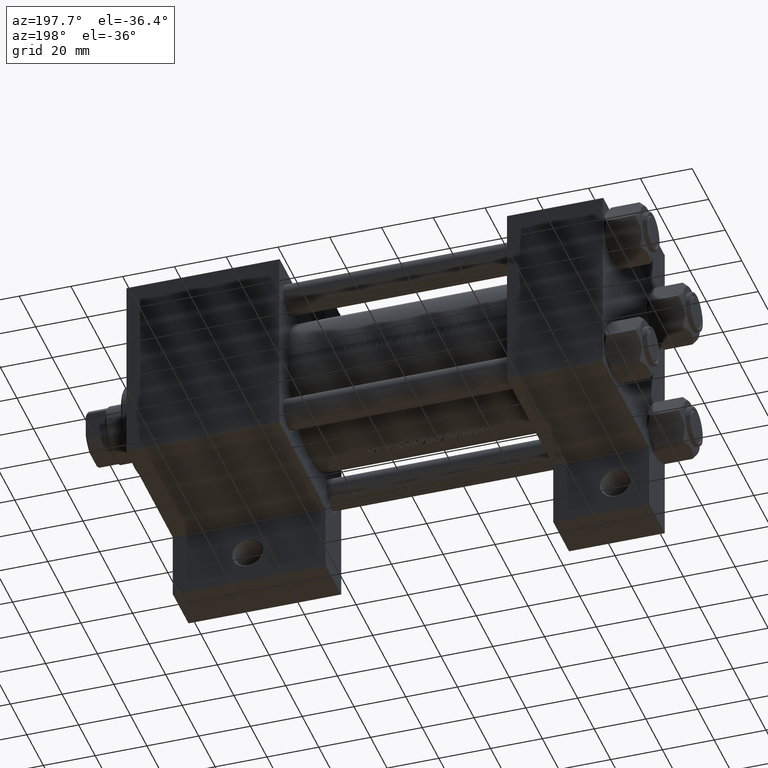
[diagram: clean part render]
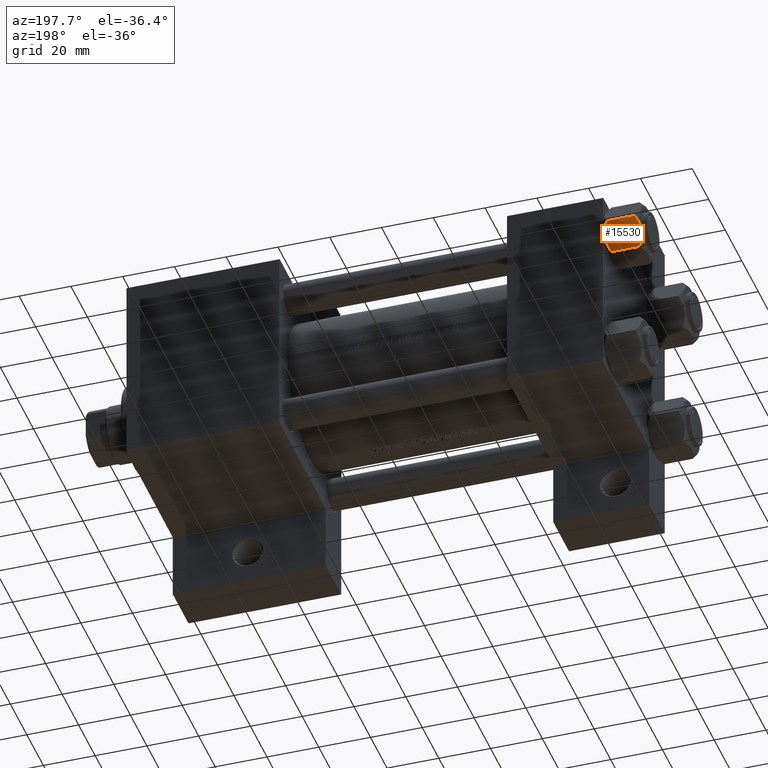
[diagram: same view with one face highlighted and labeled with its STEP entity id]
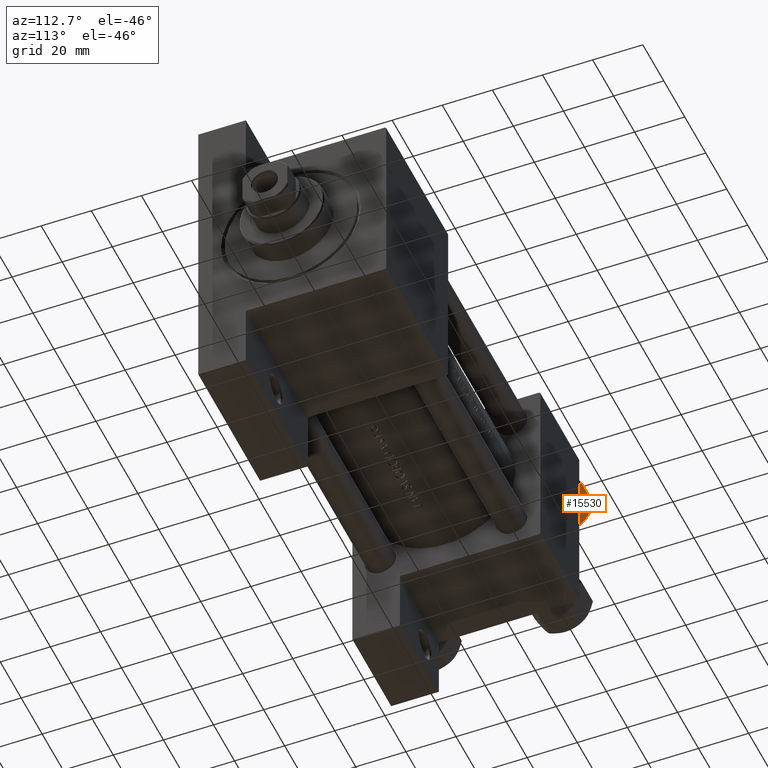
[diagram: same view with one face highlighted and labeled with its STEP entity id]
A machine part, auxiliary view. The second image highlights one B-rep face of the part: STEP entity #15530.
A second angle (auxiliary view) of the same face is appended — the face is thin or edge-on in the first view.
In plain terms, the highlighted planar face has unit normal (-0, -0.866, 0.5).
Its self-contained STEP definition (entity closure, byte-faithful):
#122 = VERTEX_POINT ( 'NONE', #31721 ) ;
#711 = CARTESIAN_POINT ( 'NONE',  ( 5.810000000000000497, 10.06321519197518022, -1.556784808024817890 ) ) ;
#2241 = CARTESIAN_POINT ( 'NONE',  ( 8.715000000000003411, 5.031607595987588333, -14.00000000000000000 ) ) ;
#2505 = VERTEX_POINT ( 'NONE', #38322 ) ;
#3764 = EDGE_CURVE ( 'NONE', #122, #4468, #6858, .T. ) ;
#4298 = CARTESIAN_POINT ( 'NONE',  ( 7.700834831386346835, 6.788193195293095172, -13.80960203119265728 ) ) ;
#4468 = VERTEX_POINT ( 'NONE', #26809 ) ;
#5261 = CARTESIAN_POINT ( 'NONE',  ( 8.460569896449619876, 5.472293462311864864, -14.00000000000000355 ) ) ;
#6382 = ORIENTED_EDGE ( 'NONE', *, *, #3764, .F. ) ;
#6532 = EDGE_CURVE ( 'NONE', #28700, #122, #27359, .T. ) ;
#6786 = CARTESIAN_POINT ( 'NONE',  ( 10.69662495661650503, 1.599332489581332339, -13.28854452935654962 ) ) ;
#6858 = B_SPLINE_CURVE_WITH_KNOTS ( 'NONE', 3,
 ( #2241, #24830, #46241, #6786, #24366, #32047 ),
 .UNSPECIFIED., .F., .F.,
 ( 4, 2, 4 ),
 ( 0.006022845781655591577, 0.009013049135303638493, 0.01200325248895168714 ),
 .UNSPECIFIED. ) ;
#7033 = CARTESIAN_POINT ( 'NONE',  ( 8.715000000000003411, 5.031607595987588333, 0.000000000000000000 ) ) ;
#7748 = CARTESIAN_POINT ( 'NONE',  ( 11.62000000000000099, -1.607967606633101042E-15, -1.556784808024815669 ) ) ;
#8383 = CARTESIAN_POINT ( 'NONE',  ( 6.265545725125283738, 9.274186850887380373, -12.89876091710046602 ) ) ;
#10362 = B_SPLINE_CURVE_WITH_KNOTS ( 'NONE', 3,
 ( #7748, #14966, #40692, #37093, #44058, #26044, #28683, #7033 ),
 .UNSPECIFIED., .F., .F.,
 ( 4, 2, 2, 4 ),
 ( 2.544312114904956385E-07, 0.003011550106433539924, 0.004517197944044563582, 0.006022845781655587240 ),
 .UNSPECIFIED. ) ;
#10726 = EDGE_CURVE ( 'NONE', #2505, #42103, #10362, .T. ) ;
#11763 = CARTESIAN_POINT ( 'NONE',  ( 6.265018354709775750, 9.275100283241453525, -1.101766453314955152 ) ) ;
#12244 = CARTESIAN_POINT ( 'NONE',  ( 7.713000053756308816, 6.767122412062953174, -0.1545239700039844066 ) ) ;
#12675 = CARTESIAN_POINT ( 'NONE',  ( 5.810000000000000497, 10.06321519197518022, -14.00000000000000000 ) ) ;
#13205 = ORIENTED_EDGE ( 'NONE', *, *, #28822, .T. ) ;
#14966 = CARTESIAN_POINT ( 'NONE',  ( 11.16445427487472131, 0.7890283410877951820, -1.101239082899533317 ) ) ;
#15530 = ADVANCED_FACE ( 'NONE', ( #46288 ), #23729, .F. ) ;
#18981 = CARTESIAN_POINT ( 'NONE',  ( 8.202333004087902779, 5.919572880271052995, -13.96005881939309212 ) ) ;
#19667 = CARTESIAN_POINT ( 'NONE',  ( 5.810000000000000497, 10.06321519197518022, -12.44321519197518278 ) ) ;
#19979 = LINE ( 'NONE', #31027, #24962 ) ;
#21132 = EDGE_LOOP ( 'NONE', ( #31468, #13205, #40626, #27697, #41608, #6382 ) ) ;
#22601 = CARTESIAN_POINT ( 'NONE',  ( 6.731401448974989599, 8.467301068182914392, -13.28585617404753272 ) ) ;
#23729 = PLANE ( 'NONE',  #26734 ) ;
#24366 = CARTESIAN_POINT ( 'NONE',  ( 11.16498164529022574, 0.7881149087337280257, -12.89823354668504862 ) ) ;
#24830 = CARTESIAN_POINT ( 'NONE',  ( 9.220295946303432189, 4.156409344131451356, -14.00000000000000178 ) ) ;
#24962 = VECTOR ( 'NONE', #30087, 1000.000000000000000 ) ;
#26044 = CARTESIAN_POINT ( 'NONE',  ( 9.227666995912102266, 4.143642311704122783, -0.03994118060690848154 ) ) ;
#26431 = CARTESIAN_POINT ( 'NONE',  ( 5.810000000000000497, 10.06321519197518022, -12.44321519197518278 ) ) ;
#26734 = AXIS2_PLACEMENT_3D ( 'NONE', #38837, #31167, #34993 ) ;
#26809 = CARTESIAN_POINT ( 'NONE',  ( 11.62000000000000099, -1.795242522838921761E-15, -12.44321519197518455 ) ) ;
#27273 = VECTOR ( 'NONE', #31435, 1000.000000000000000 ) ;
#27359 = B_SPLINE_CURVE_WITH_KNOTS ( 'NONE', 3,
 ( #26431, #8383, #22601, #34597, #4298, #18981, #5261, #30049 ),
 .UNSPECIFIED., .F., .F.,
 ( 4, 2, 2, 4 ),
 ( 2.544312114902182352E-07, 0.003011550106433540791, 0.004517197944044566184, 0.006022845781655591577 ),
 .UNSPECIFIED. ) ;
#27697 = ORIENTED_EDGE ( 'NONE', *, *, #10726, .F. ) ;
#28683 = CARTESIAN_POINT ( 'NONE',  ( 8.969430103550381617, 4.590921729663312689, 1.314595134138673732E-15 ) ) ;
#28700 = VERTEX_POINT ( 'NONE', #19667 ) ;
#28822 = EDGE_CURVE ( 'NONE', #28700, #44557, #38874, .T. ) ;
#29398 = EDGE_CURVE ( 'NONE', #4468, #2505, #19979, .T. ) ;
#30049 = CARTESIAN_POINT ( 'NONE',  ( 8.715000000000003411, 5.031607595987588333, -14.00000000000000000 ) ) ;
#30087 = DIRECTION ( 'NONE',  ( -0.000000000000000000, -0.000000000000000000, 1.000000000000000000 ) ) ;
#31027 = CARTESIAN_POINT ( 'NONE',  ( 11.62000000000000099, -1.813166800014576593E-15, -14.00000000000000000 ) ) ;
#31167 = DIRECTION ( 'NONE',  ( -0.8660254037844387076, -0.4999999999999998335, 0.000000000000000000 ) ) ;
#31435 = DIRECTION ( 'NONE',  ( -0.000000000000000000, -0.000000000000000000, 1.000000000000000000 ) ) ;
#31468 = ORIENTED_EDGE ( 'NONE', *, *, #6532, .F. ) ;
#31721 = CARTESIAN_POINT ( 'NONE',  ( 8.715000000000003411, 5.031607595987588333, -14.00000000000000000 ) ) ;
#32047 = CARTESIAN_POINT ( 'NONE',  ( 11.62000000000000099, -1.795242522838921761E-15, -12.44321519197518455 ) ) ;
#33665 = CARTESIAN_POINT ( 'NONE',  ( 8.209704053696574633, 5.906805847843726198, 1.265467223197924312E-15 ) ) ;
#34123 = CARTESIAN_POINT ( 'NONE',  ( 6.733375043383499126, 8.463882702393842550, -0.7114554706434507159 ) ) ;
#34287 = EDGE_CURVE ( 'NONE', #42103, #44557, #44386, .T. ) ;
#34597 = CARTESIAN_POINT ( 'NONE',  ( 7.455303369716809847, 7.213466161761385997, -13.69973261901326289 ) ) ;
#34993 = DIRECTION ( 'NONE',  ( 0.4999999999999998335, -0.8660254037844387076, 0.000000000000000000 ) ) ;
#37093 = CARTESIAN_POINT ( 'NONE',  ( 9.974696630283190757, 2.849749030213790224, -0.3002673809867378307 ) ) ;
#37507 = CARTESIAN_POINT ( 'NONE',  ( 8.715000000000003411, 5.031607595987588333, 0.000000000000000000 ) ) ;
#38322 = CARTESIAN_POINT ( 'NONE',  ( 11.62000000000000099, -1.607967606633101042E-15, -1.556784808024815669 ) ) ;
#38800 = CARTESIAN_POINT ( 'NONE',  ( 8.715000000000003411, 5.031607595987588333, 0.000000000000000000 ) ) ;
#38837 = CARTESIAN_POINT ( 'NONE',  ( 5.810000000000000497, 10.06321519197518022, -14.00000000000000000 ) ) ;
#38874 = LINE ( 'NONE', #12675, #27273 ) ;
#40626 = ORIENTED_EDGE ( 'NONE', *, *, #34287, .F. ) ;
#40692 = CARTESIAN_POINT ( 'NONE',  ( 10.69859855102501278, 1.595914123792261829, -0.7141438259524660603 ) ) ;
#41608 = ORIENTED_EDGE ( 'NONE', *, *, #29398, .F. ) ;
#42103 = VERTEX_POINT ( 'NONE', #38800 ) ;
#44058 = CARTESIAN_POINT ( 'NONE',  ( 9.729165168613654657, 3.275021996682081493, -0.1903979688073423326 ) ) ;
#44386 = B_SPLINE_CURVE_WITH_KNOTS ( 'NONE', 3,
 ( #37507, #33665, #12244, #34123, #11763, #711 ),
 .UNSPECIFIED., .F., .F.,
 ( 4, 2, 4 ),
 ( 0.006022845781655587240, 0.009013049135303635023, 0.01200325248895168367 ),
 .UNSPECIFIED. ) ;
#44557 = VERTEX_POINT ( 'NONE', #47138 ) ;
#46241 = CARTESIAN_POINT ( 'NONE',  ( 9.716999946243698005, 3.296092779912227044, -13.84547602999601779 ) ) ;
#46288 = FACE_OUTER_BOUND ( 'NONE', #21132, .T. ) ;
#47138 = CARTESIAN_POINT ( 'NONE',  ( 5.810000000000000497, 10.06321519197518022, -1.556784808024817890 ) ) ;